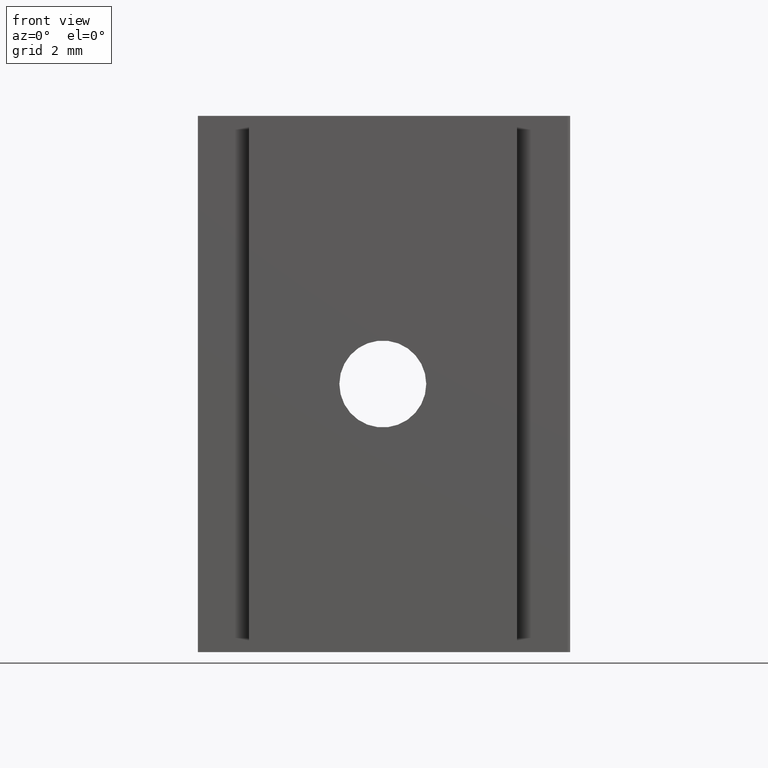
[diagram: clean part render]
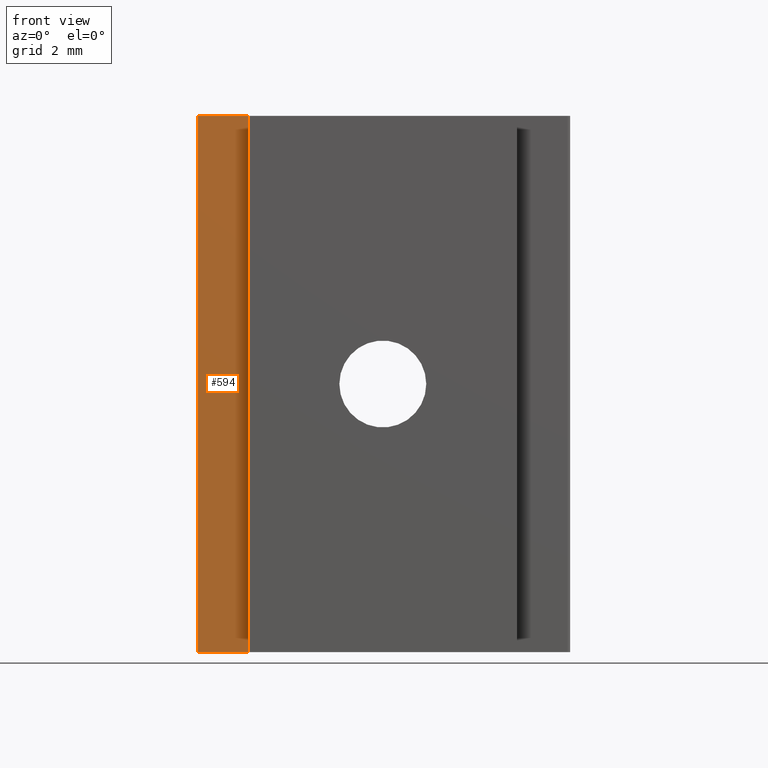
[diagram: same view with one face highlighted and labeled with its STEP entity id]
A machine part, front view. The second image highlights one B-rep face of the part: STEP entity #594.
In plain terms, the highlighted planar face has unit normal (0, -1, 0).
Its self-contained STEP definition (entity closure, byte-faithful):
#37=PLANE('',#666);
#67=FACE_OUTER_BOUND('',#99,.T.);
#99=EDGE_LOOP('',(#552,#553,#554,#555));
#140=LINE('',#957,#204);
#156=LINE('',#994,#220);
#159=LINE('',#1001,#223);
#163=LINE('',#1009,#227);
#204=VECTOR('',#773,10.);
#220=VECTOR('',#807,10.);
#223=VECTOR('',#816,10.);
#227=VECTOR('',#828,10.);
#289=VERTEX_POINT('',#954);
#290=VERTEX_POINT('',#956);
#301=VERTEX_POINT('',#991);
#302=VERTEX_POINT('',#993);
#361=EDGE_CURVE('',#289,#290,#140,.T.);
#379=EDGE_CURVE('',#301,#302,#156,.T.);
#383=EDGE_CURVE('',#302,#289,#159,.T.);
#387=EDGE_CURVE('',#301,#290,#163,.T.);
#552=ORIENTED_EDGE('',*,*,#379,.F.);
#553=ORIENTED_EDGE('',*,*,#387,.T.);
#554=ORIENTED_EDGE('',*,*,#361,.F.);
#555=ORIENTED_EDGE('',*,*,#383,.F.);
#594=ADVANCED_FACE('',(#67),#37,.T.);
#666=AXIS2_PLACEMENT_3D('',#1010,#829,#830);
#773=DIRECTION('',(1.,1.46081976924363E-16,0.));
#807=DIRECTION('',(-1.,-1.46081976924363E-16,0.));
#816=DIRECTION('',(0.,0.,1.));
#828=DIRECTION('',(0.,0.,1.));
#829=DIRECTION('center_axis',(1.46081976924363E-16,-1.,0.));
#830=DIRECTION('ref_axis',(1.,1.46081976924363E-16,0.));
#954=CARTESIAN_POINT('',(-6.9,-9.0205620750794E-16,20.));
#956=CARTESIAN_POINT('',(-5.,-6.24500451351651E-16,20.));
#957=CARTESIAN_POINT('',(-5.,-6.24500451351651E-16,20.));
#991=CARTESIAN_POINT('',(-5.,-6.24500451351651E-16,0.));
#993=CARTESIAN_POINT('',(-6.9,-9.0205620750794E-16,0.));
#994=CARTESIAN_POINT('',(-5.,-6.24500451351651E-16,0.));
#1001=CARTESIAN_POINT('',(-6.9,-9.0205620750794E-16,0.));
#1009=CARTESIAN_POINT('',(-5.,-6.24500451351651E-16,0.));
#1010=CARTESIAN_POINT('Origin',(-6.9,-9.0205620750794E-16,0.));